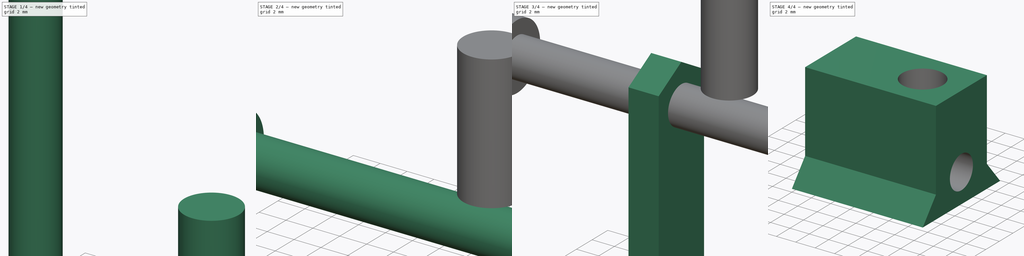
[diagram: build sequence overview — one tinted view per stage of 4, left to right]
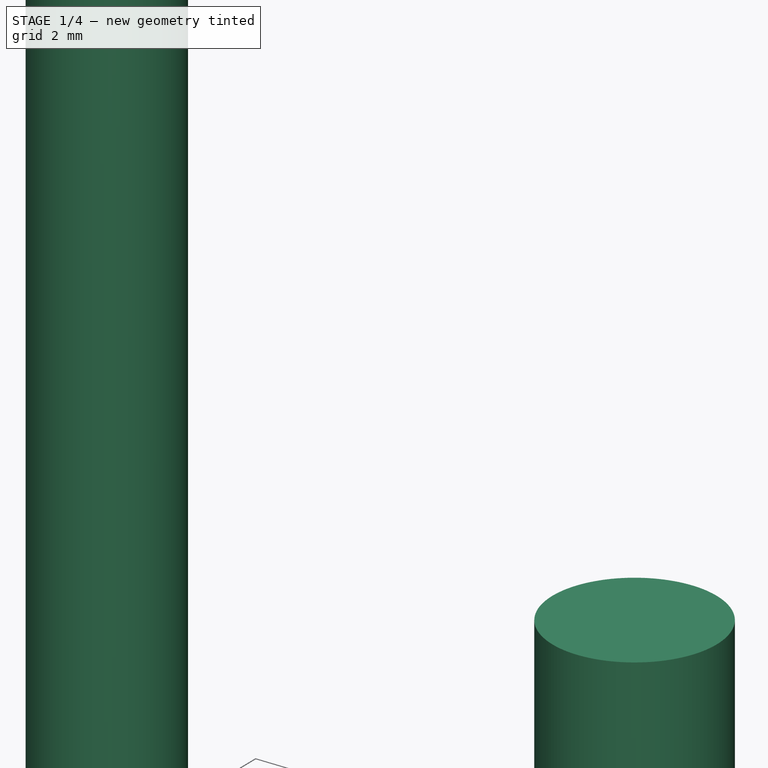
[diagram: stage 1 of 4 — iso view after this stage's code; geometry added in this stage tinted green]
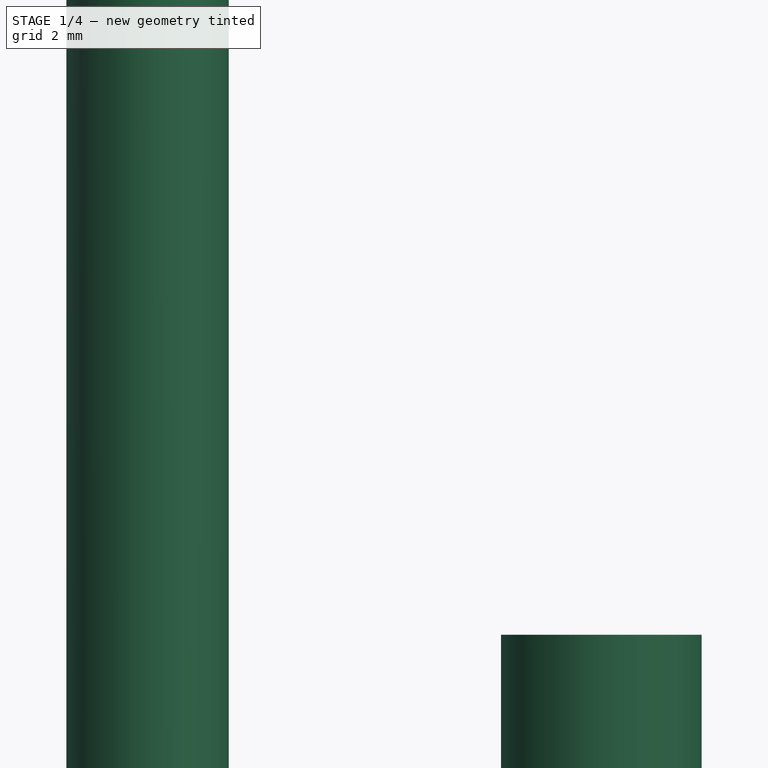
[diagram: stage 1 of 4 — front view after this stage's code; geometry added in this stage tinted green]
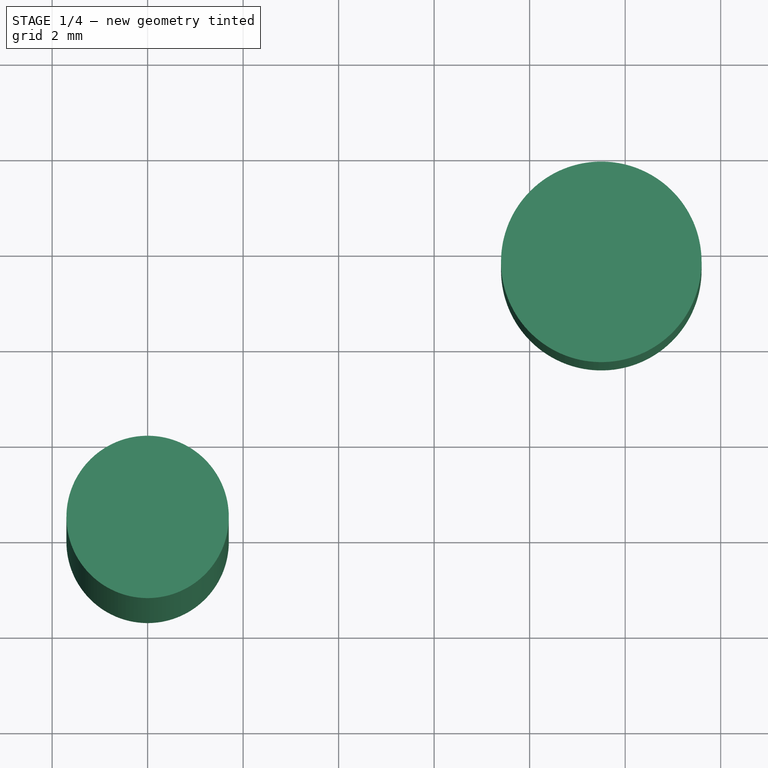
[diagram: stage 1 of 4 — top view after this stage's code; geometry added in this stage tinted green]
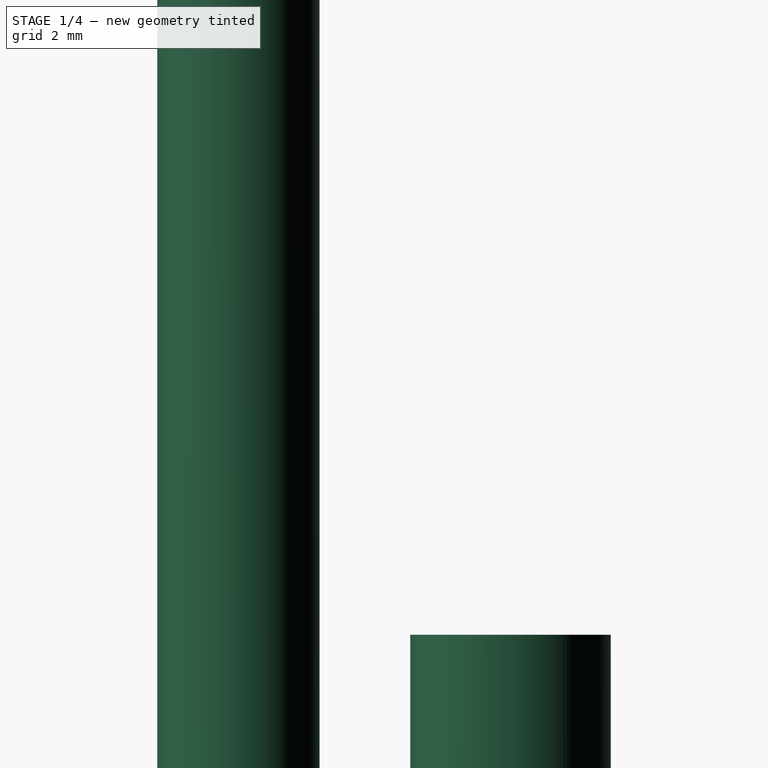
[diagram: stage 1 of 4 — right view after this stage's code; geometry added in this stage tinted green]
FCSTD DOCUMENT  (FreeCAD 0.16R6458 (Git))
Label: Art3TensionerBody
License: CreativeCommons Attribution-ShareAlike
LicenseURL: http://creativecommons.org/licenses/by-sa/4.0/
objects: Part::Cylinder×3, Sketcher::SketchObject×2, PartDesign::Pad×2, Part::MultiFuse×2, Part::FeaturePython×2, App::DocumentObjectGroup×1, Part::Cut×1
note: 14 computed .brp shape members not serialized (recipe doc carries the construction recipe); baked Part::Feature solids carry a one-line shape summary decoded from their .brp

FEATURE [Part::Cylinder] Cylinder001  label="M3BoltBody"
  Angle = 360
  Height = 30
  Placement = pos=(0,0,6) rot=(0,0,1;0rad)
  Radius = 1.7
FEATURE [Part::Cylinder] Cylinder002  label="Cylinder"
  Angle = 360
  Height = 10
  Placement = pos=(9.5,5.7,5.5) rot=(0,0,1;0rad)
  Radius = 2.1
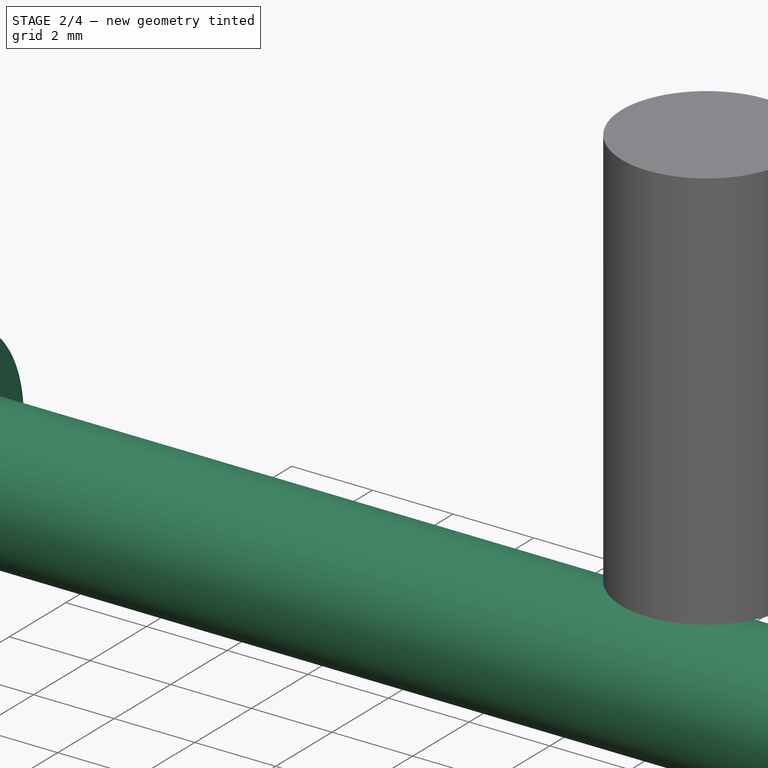
[diagram: stage 2 of 4 — iso view after this stage's code; geometry added in this stage tinted green]
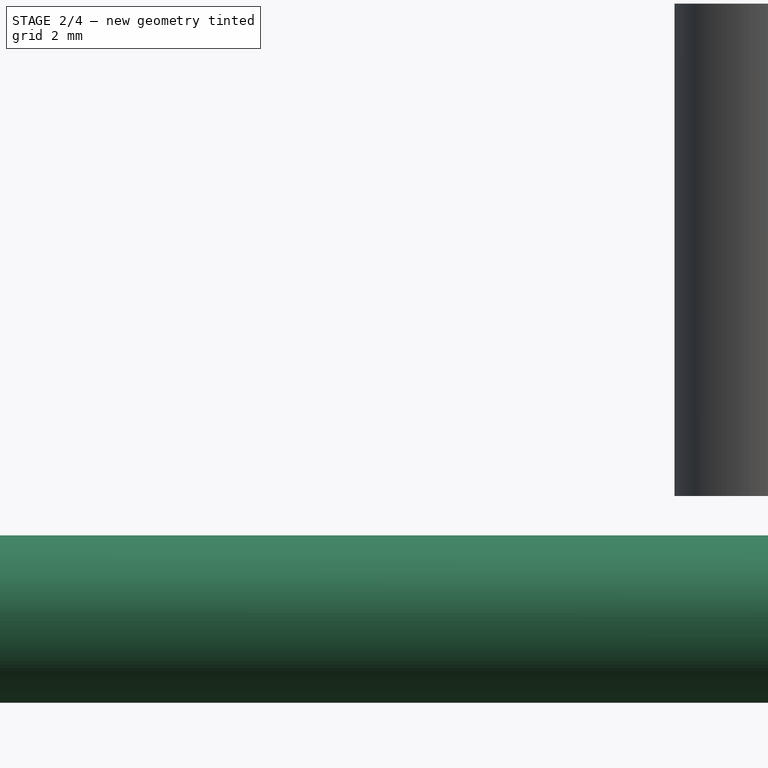
[diagram: stage 2 of 4 — front view after this stage's code; geometry added in this stage tinted green]
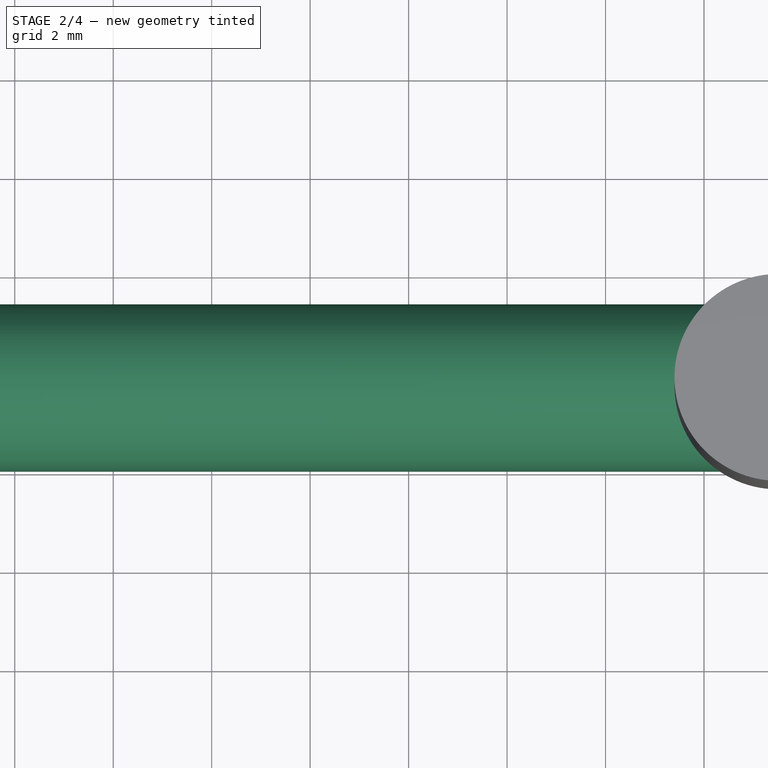
[diagram: stage 2 of 4 — top view after this stage's code; geometry added in this stage tinted green]
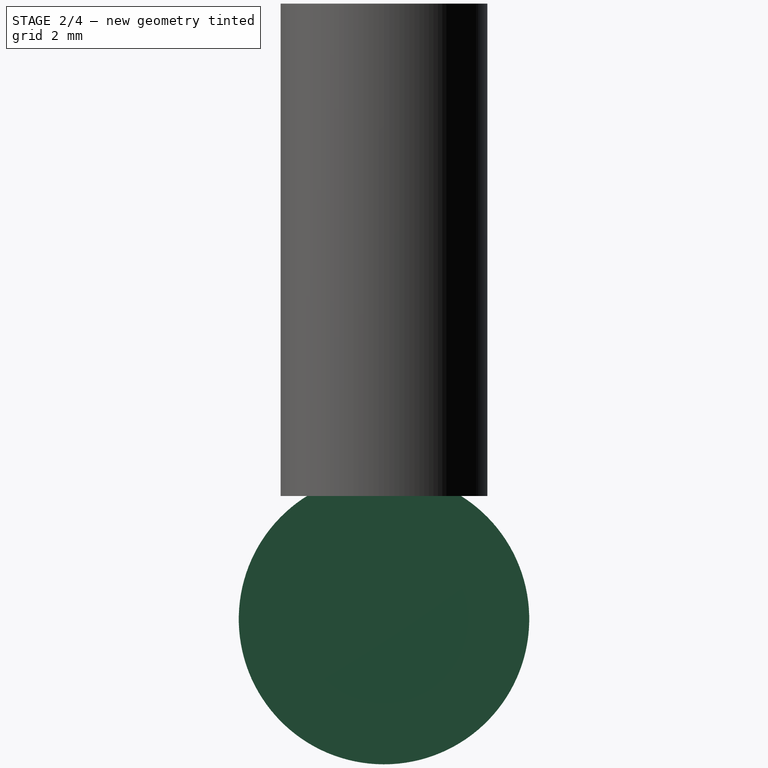
[diagram: stage 2 of 4 — right view after this stage's code; geometry added in this stage tinted green]
FEATURE [Part::Cylinder] Cylinder  label="M3BoltHead"
  Angle = 360
  Height = 7
  Radius = 2.95
FEATURE [Part::MultiFuse] Fusion  label="M3Bolt"
  Shapes = -> [Cylinder001,Cylinder]
FEATURE [Part::FeaturePython] Clone001  label="Clone of M3Bolt"  # Draft clone (typed FeaturePython)
  Objects = -> [Fusion]
  Placement = pos=(-16.5,5.7,3) rot=(0,1,0;1.5708rad)
  Scale = (1,1,1)
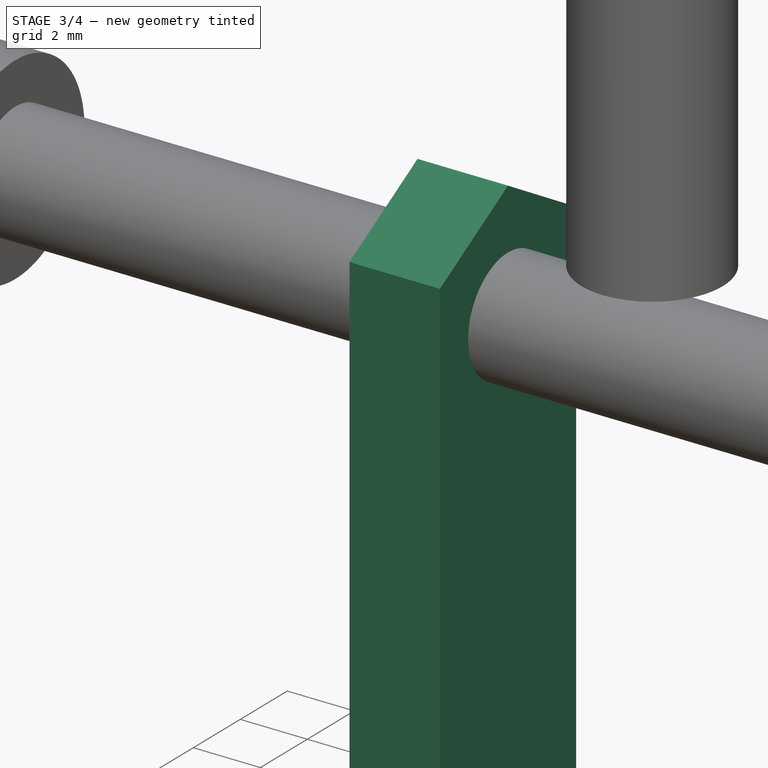
[diagram: stage 3 of 4 — iso view after this stage's code; geometry added in this stage tinted green]
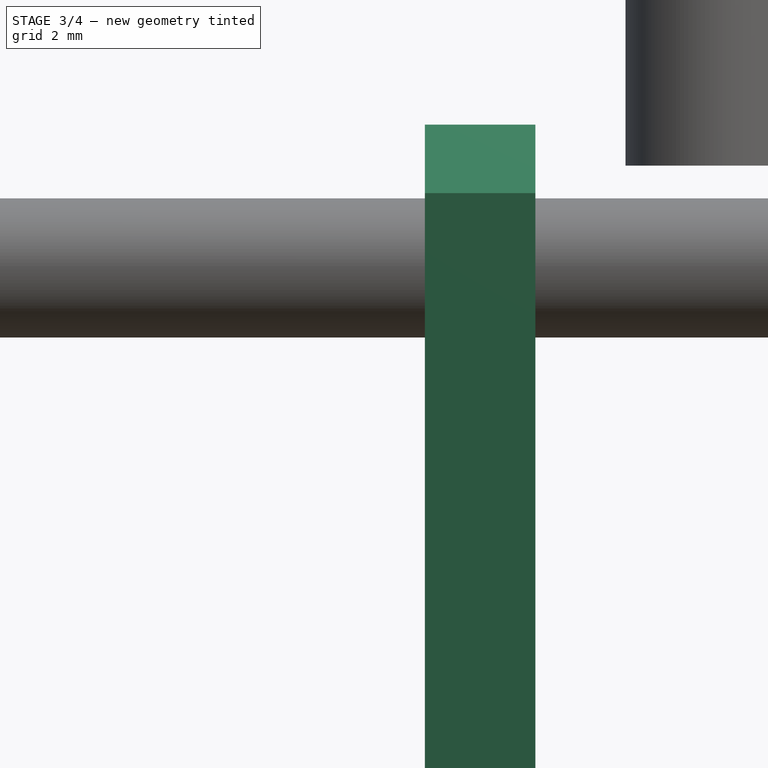
[diagram: stage 3 of 4 — front view after this stage's code; geometry added in this stage tinted green]
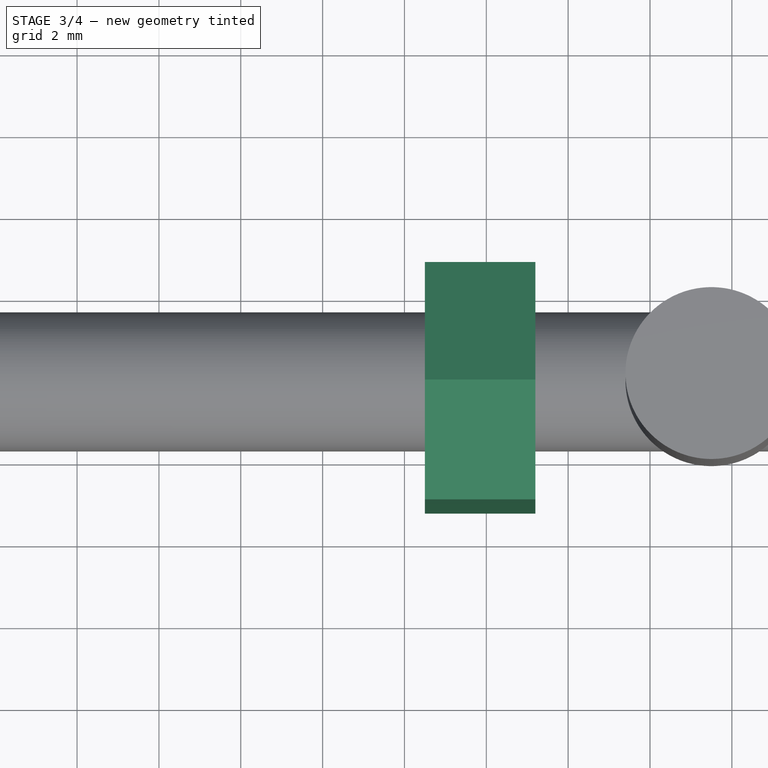
[diagram: stage 3 of 4 — top view after this stage's code; geometry added in this stage tinted green]
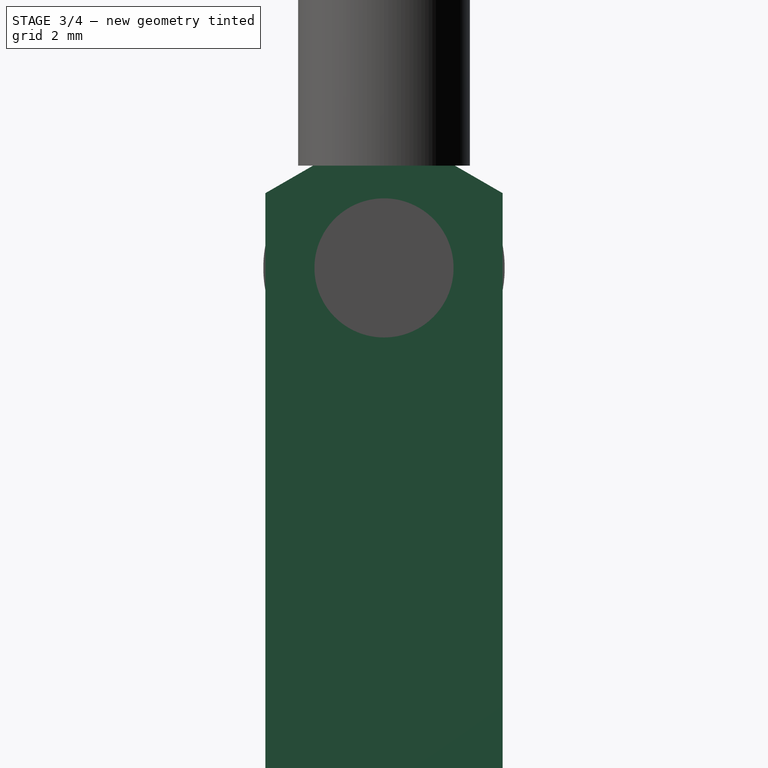
[diagram: stage 3 of 4 — right view after this stage's code; geometry added in this stage tinted green]
FEATURE [Sketcher::SketchObject] Sketch003  label="M3NutHousingSketch"
  sketch-geometry (5):
    g0: LineSegment StartX=0 StartY=0 StartZ=0 EndX=1.67432 EndY=2.9 EndZ=0
    g1: LineSegment StartX=1.67432 StartY=2.9 StartZ=0 EndX=21.6743 EndY=2.9 EndZ=0
    g2: LineSegment StartX=21.6743 StartY=2.9 StartZ=0 EndX=21.6743 EndY=-2.9 EndZ=0
    g3: LineSegment StartX=21.6743 StartY=-2.9 StartZ=0 EndX=1.67432 EndY=-2.9 EndZ=0
    g4: LineSegment StartX=1.67432 StartY=-2.9 StartZ=0 EndX=0 EndY=0 EndZ=0
  constraints (14):
    c: Coincident(g-1,g0)
    c: Coincident(g0,g1)
    c: Horizontal(g1)
    c: Coincident(g1,g2)
    c: Vertical(g2)
    c: Coincident(g2,g3)
    c: Horizontal(g3)
    c: Coincident(g3,g4)
    c: Coincident(g4,g0)
    c: Equal(g3,g1)
    c: Equal(g4,g0)
    c: DistanceY(g2) = -5.8
    c: Angle(g-1,g0) = 1.0472
    c: DistanceX(g3) = -20
FEATURE [PartDesign::Pad] Pad002  label="M3NutHousing"
  Length = 2.7
  Length2 = 100
  Sketch = -> Sketch003
  Type = 0
FEATURE [App::DocumentObjectGroup] Group  label="Master"
  Group = -> [Pad002,Fusion]
FEATURE [Part::FeaturePython] Clone  label="Clone of M3NutHousing"  # Draft clone (typed FeaturePython)
  Objects = -> [Pad002]
  Placement = pos=(2.5,5.7,6.5) rot=(0,1,0;1.5708rad)
  Scale = (1,1,1)
FEATURE [Part::MultiFuse] Fusion001
  Shapes = -> [Cylinder002,Clone001,Clone]
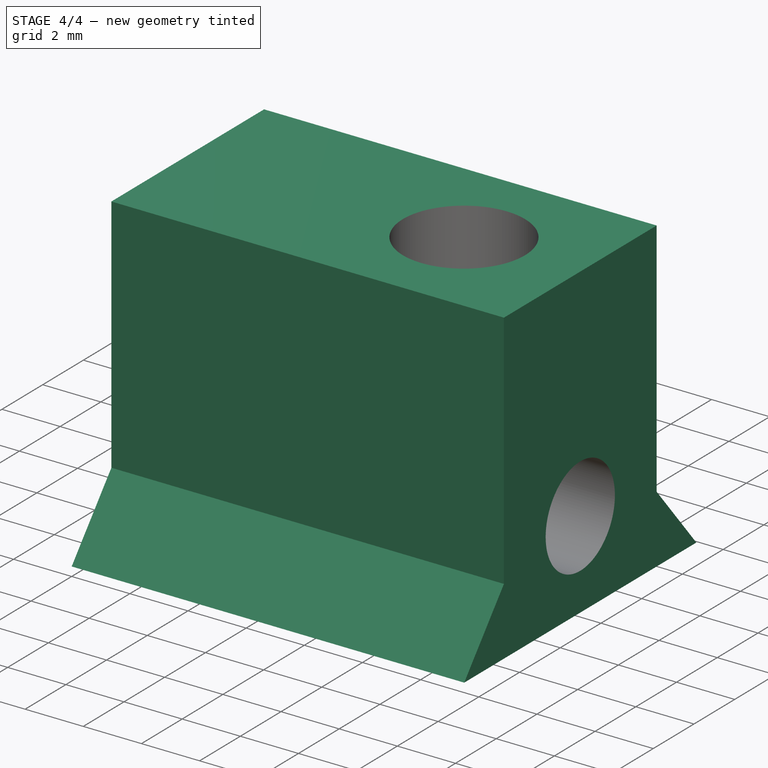
[diagram: stage 4 of 4 — iso view after this stage's code; geometry added in this stage tinted green]
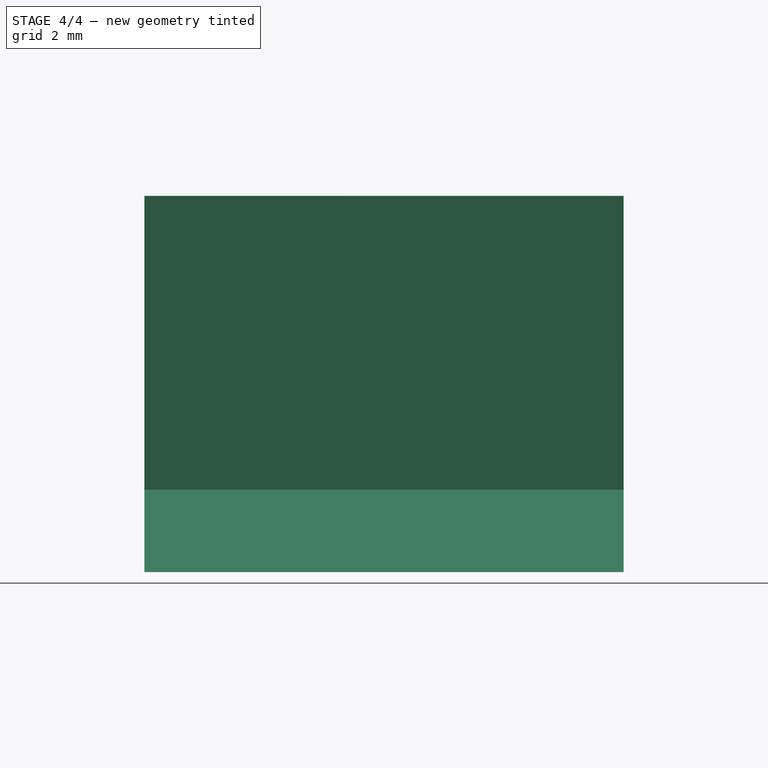
[diagram: stage 4 of 4 — front view after this stage's code; geometry added in this stage tinted green]
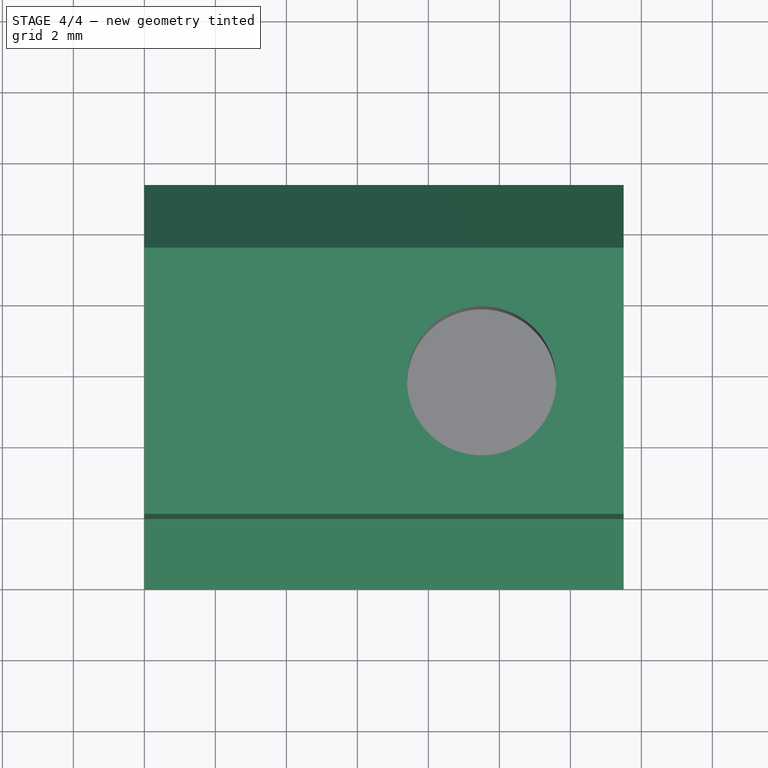
[diagram: stage 4 of 4 — top view after this stage's code; geometry added in this stage tinted green]
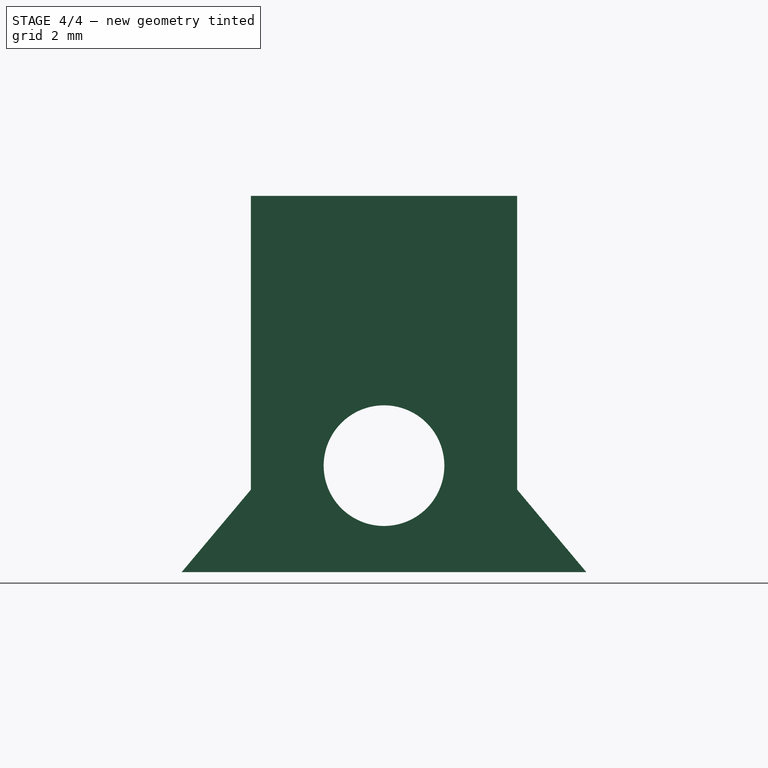
[diagram: stage 4 of 4 — right view after this stage's code; geometry added in this stage tinted green]
FEATURE [Sketcher::SketchObject] Sketch027
  Placement = pos=(0,0,0) rot=(0.57735,0.57735,0.57735;2.0944rad)
  sketch-geometry (6):
    g0: LineSegment StartX=1.95 StartY=2.32392 StartZ=0 EndX=0 EndY=0 EndZ=0
    g1: LineSegment StartX=0 StartY=0 StartZ=0 EndX=11.4 EndY=0 EndZ=0
    g2: LineSegment StartX=11.4 StartY=0 StartZ=0 EndX=9.45 EndY=2.32392 EndZ=0
    g3: LineSegment StartX=1.95 StartY=2.32392 StartZ=0 EndX=1.95 EndY=10.6 EndZ=0
    g4: LineSegment StartX=1.95 StartY=10.6 StartZ=0 EndX=9.45 EndY=10.6 EndZ=0
    g5: LineSegment StartX=9.45 StartY=10.6 StartZ=0 EndX=9.45 EndY=2.32392 EndZ=0
  constraints (17):
    c: Coincident(g0,g1)
    c: Horizontal(g1)
    c: Coincident(g1,g2)
    c: Equal(g0,g2)
    c: Angle(g1,g0) = 0.872665
    c: Angle(g2,g1) = 0.872665
    c: DistanceX(g1) = 11.4
    c: DistanceX(g0,g2) = 7.5
    c: Coincident(g0,g-1)
    c: Coincident(g3,g0)
    c: Vertical(g3)
    c: Coincident(g4,g3)
    c: Horizontal(g4)
    c: Coincident(g5,g4)
    c: Coincident(g5,g2)
    c: Vertical(g5)
    c: DistanceY(g4,g1) = -10.6
FEATURE [PartDesign::Pad] Pad
  Length = 13.5
  Length2 = 100
  Placement = pos=(0,0,0) rot=(0.57735,0.57735,0.57735;2.0944rad)
  Sketch = -> Sketch027
  Type = 0
FEATURE [Part::Cut] Cut  label="Art3TensionerBody"
  Base = -> Pad
  Tool = -> Fusion001
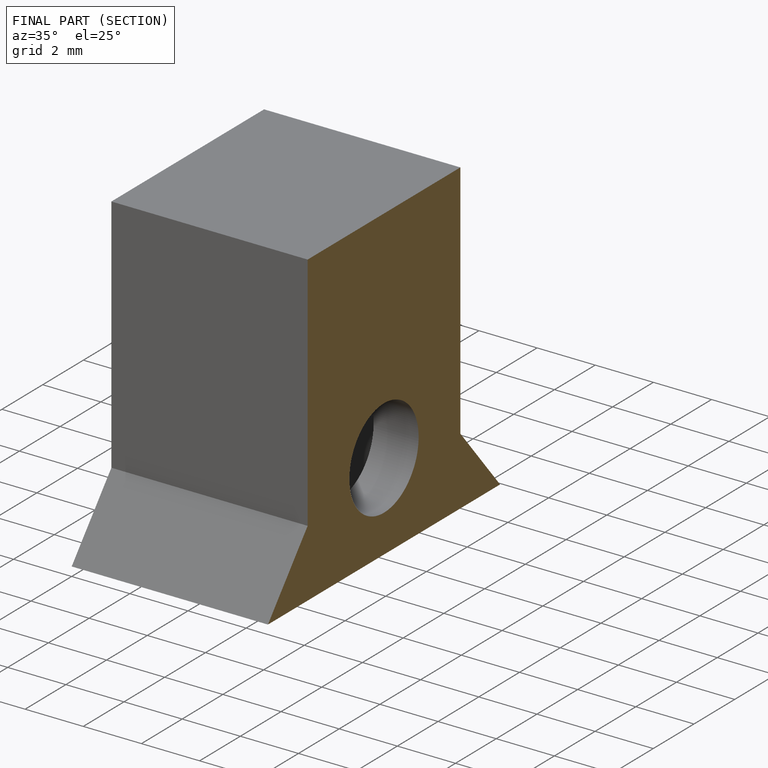
[diagram: finished part — half-section view (interior)]
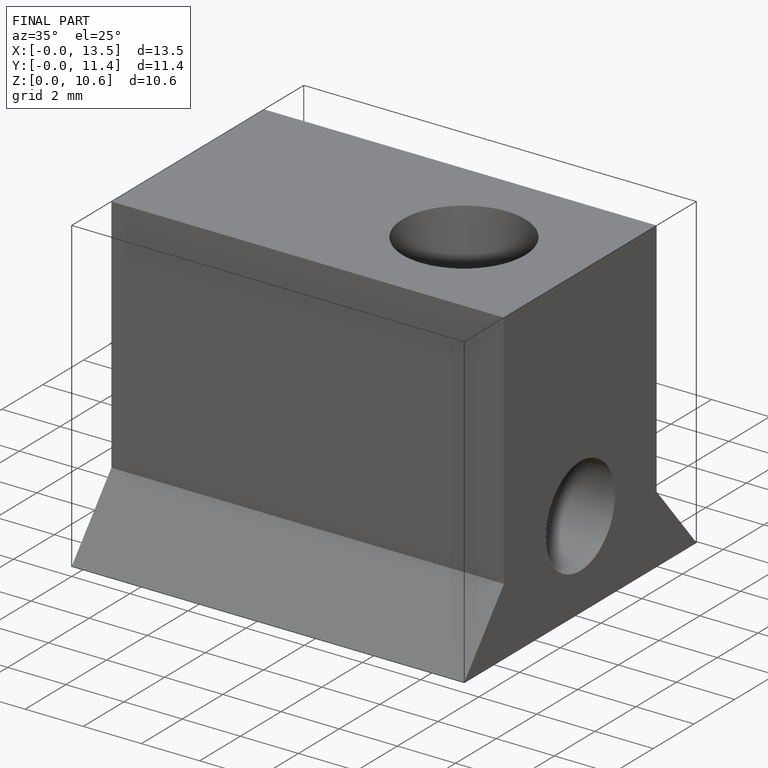
[diagram: finished part — iso view with bounding-box wireframe]
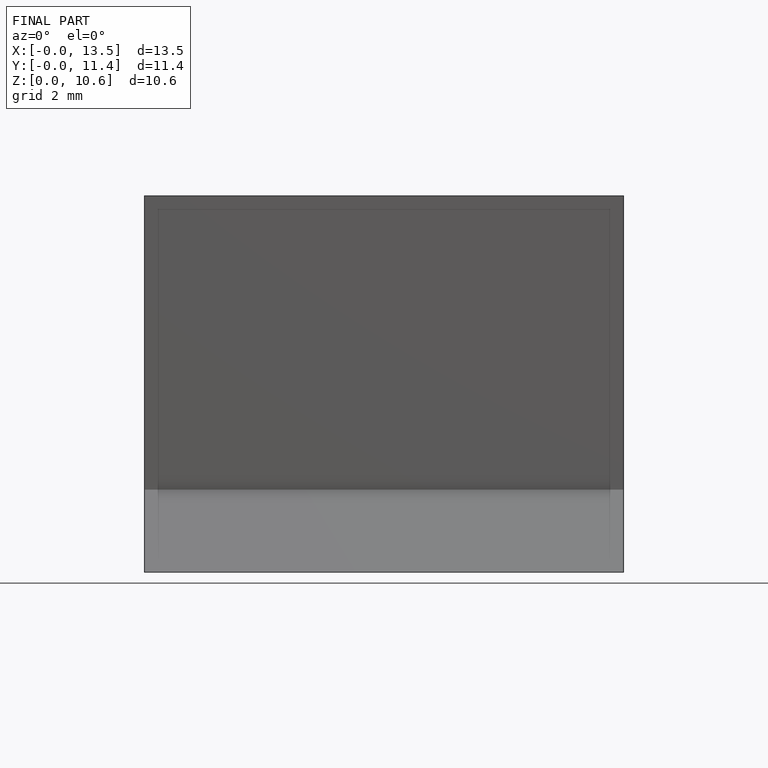
[diagram: finished part — front view with bounding-box wireframe]
